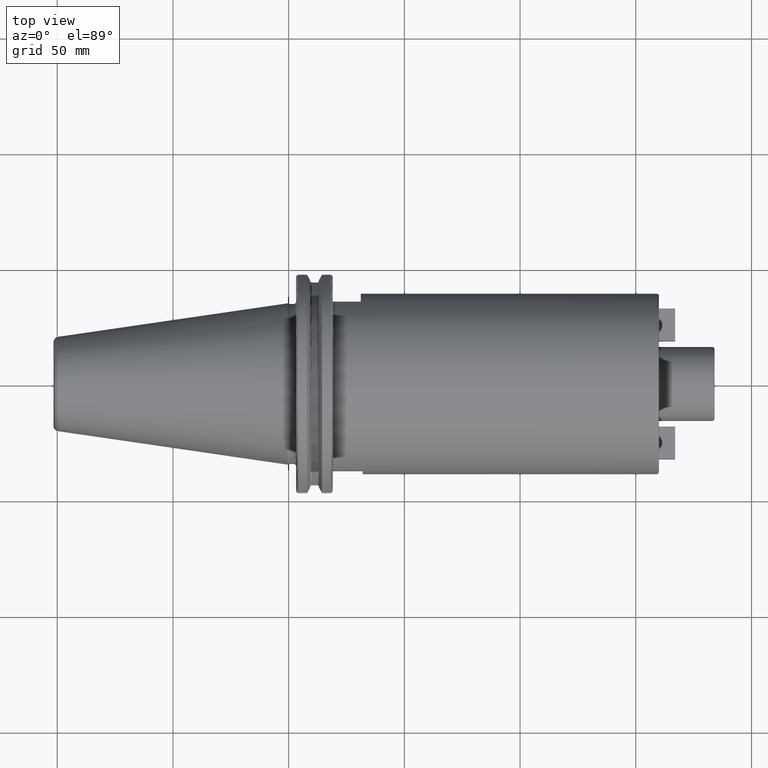
[diagram: clean part render]
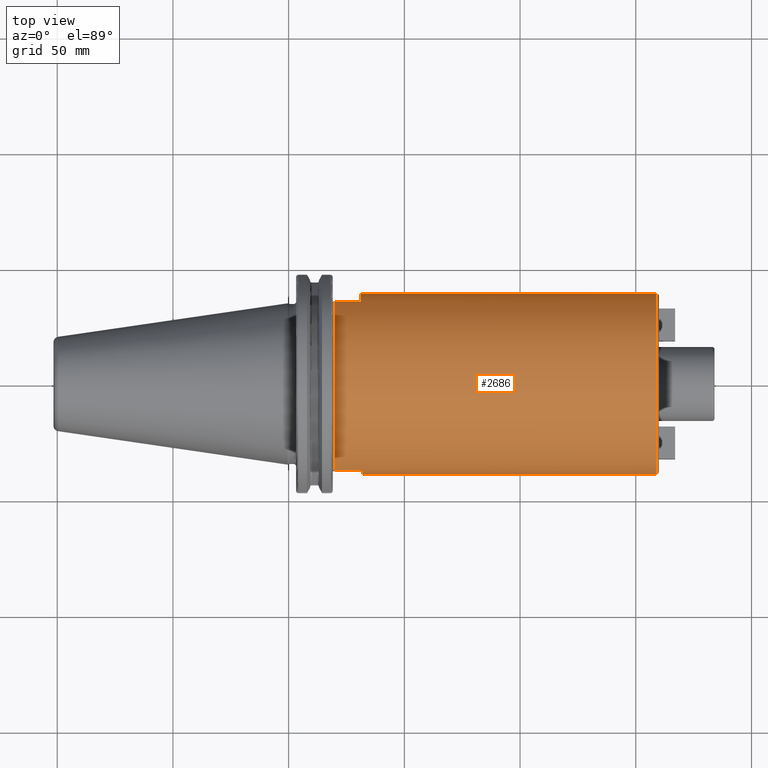
[diagram: same view with one face highlighted and labeled with its STEP entity id]
A machine part, top view. The second image highlights one B-rep face of the part: STEP entity #2686.
In plain terms, the highlighted cylindrical surface (partial cylindrical patch) has radius 39 mm, axis along (1, 0, 0).
Its self-contained STEP definition (entity closure, byte-faithful):
#196=CARTESIAN_POINT('',(2.005E1,0.E0,0.E0));
#197=DIRECTION('',(1.E0,0.E0,0.E0));
#198=DIRECTION('',(0.E0,9.051282051282E-1,4.251387212210E-1));
#199=AXIS2_PLACEMENT_3D('',#196,#197,#198);
#952=DIRECTION('',(1.E0,0.E0,0.E0));
#953=VECTOR('',#952,1.19E1);
#954=CARTESIAN_POINT('',(2.005E1,-3.75E1,1.071214264281E1));
#955=LINE('',#954,#953);
#956=DIRECTION('',(1.E0,0.E0,0.E0));
#957=VECTOR('',#956,1.11E1);
#958=CARTESIAN_POINT('',(2.005E1,3.53E1,1.658041012762E1));
#959=LINE('',#958,#957);
#960=CARTESIAN_POINT('',(3.115E1,0.E0,0.E0));
#961=DIRECTION('',(1.E0,0.E0,0.E0));
#962=DIRECTION('',(0.E0,1.E0,0.E0));
#963=AXIS2_PLACEMENT_3D('',#960,#961,#962);
#965=CARTESIAN_POINT('',(1.59E2,0.E0,0.E0));
#966=DIRECTION('',(-1.E0,0.E0,0.E0));
#967=DIRECTION('',(0.E0,-1.E0,0.E0));
#968=AXIS2_PLACEMENT_3D('',#965,#966,#967);
#970=CARTESIAN_POINT('',(3.195E1,0.E0,0.E0));
#971=DIRECTION('',(1.E0,0.E0,0.E0));
#972=DIRECTION('',(0.E0,-9.615384615385E-1,2.746703241747E-1));
#973=AXIS2_PLACEMENT_3D('',#970,#971,#972);
#984=DIRECTION('',(-1.E0,0.E0,0.E0));
#985=VECTOR('',#984,1.2705E2);
#986=CARTESIAN_POINT('',(1.59E2,-3.9E1,4.181083684407E-13));
#987=LINE('',#986,#985);
#993=DIRECTION('',(-1.E0,0.E0,0.E0));
#994=VECTOR('',#993,1.2785E2);
#995=CARTESIAN_POINT('',(1.59E2,3.9E1,-4.193023990699E-13));
#996=LINE('',#995,#994);
#1633=CARTESIAN_POINT('',(1.59E2,3.9E1,0.E0));
#1634=CARTESIAN_POINT('',(1.59E2,-3.9E1,0.E0));
#1635=VERTEX_POINT('',#1633);
#1636=VERTEX_POINT('',#1634);
#1691=CARTESIAN_POINT('',(2.005E1,3.53E1,1.658041012762E1));
#1692=CARTESIAN_POINT('',(3.115E1,3.53E1,1.658041012762E1));
#1693=VERTEX_POINT('',#1691);
#1694=VERTEX_POINT('',#1692);
#1695=CARTESIAN_POINT('',(3.115E1,3.9E1,0.E0));
#1696=VERTEX_POINT('',#1695);
#1706=CARTESIAN_POINT('',(2.005E1,-3.75E1,1.071214264281E1));
#1707=CARTESIAN_POINT('',(3.195E1,-3.75E1,1.071214264281E1));
#1708=VERTEX_POINT('',#1706);
#1709=VERTEX_POINT('',#1707);
#1710=CARTESIAN_POINT('',(3.195E1,-3.9E1,0.E0));
#1711=VERTEX_POINT('',#1710);
#2666=CARTESIAN_POINT('',(1.08025E1,0.E0,0.E0));
#2667=DIRECTION('',(1.E0,0.E0,0.E0));
#2668=DIRECTION('',(0.E0,-1.E0,0.E0));
#2669=AXIS2_PLACEMENT_3D('',#2666,#2667,#2668);
#2670=CYLINDRICAL_SURFACE('',#2669,3.9E1);
#2671=ORIENTED_EDGE('',*,*,#2001,.F.);
#2672=ORIENTED_EDGE('',*,*,#1987,.F.);
#2673=ORIENTED_EDGE('',*,*,#1880,.T.);
#2675=ORIENTED_EDGE('',*,*,#2674,.F.);
#2677=ORIENTED_EDGE('',*,*,#2676,.F.);
#2679=ORIENTED_EDGE('',*,*,#2678,.F.);
#2681=ORIENTED_EDGE('',*,*,#2680,.T.);
#2683=ORIENTED_EDGE('',*,*,#2682,.F.);
#2684=EDGE_LOOP('',(#2671,#2672,#2673,#2675,#2677,#2679,#2681,#2683));
#2685=FACE_OUTER_BOUND('',#2684,.F.);
#2686=ADVANCED_FACE('',(#2685),#2670,.T.);
#200=CIRCLE('',#199,3.9E1);
#964=CIRCLE('',#963,3.9E1);
#969=CIRCLE('',#968,3.9E1);
#974=CIRCLE('',#973,3.9E1);
#1880=EDGE_CURVE('',#1693,#1694,#959,.T.);
#1987=EDGE_CURVE('',#1693,#1708,#200,.T.);
#2001=EDGE_CURVE('',#1708,#1709,#955,.T.);
#2674=EDGE_CURVE('',#1696,#1694,#964,.T.);
#2676=EDGE_CURVE('',#1635,#1696,#996,.T.);
#2678=EDGE_CURVE('',#1636,#1635,#969,.T.);
#2680=EDGE_CURVE('',#1636,#1711,#987,.T.);
#2682=EDGE_CURVE('',#1709,#1711,#974,.T.);